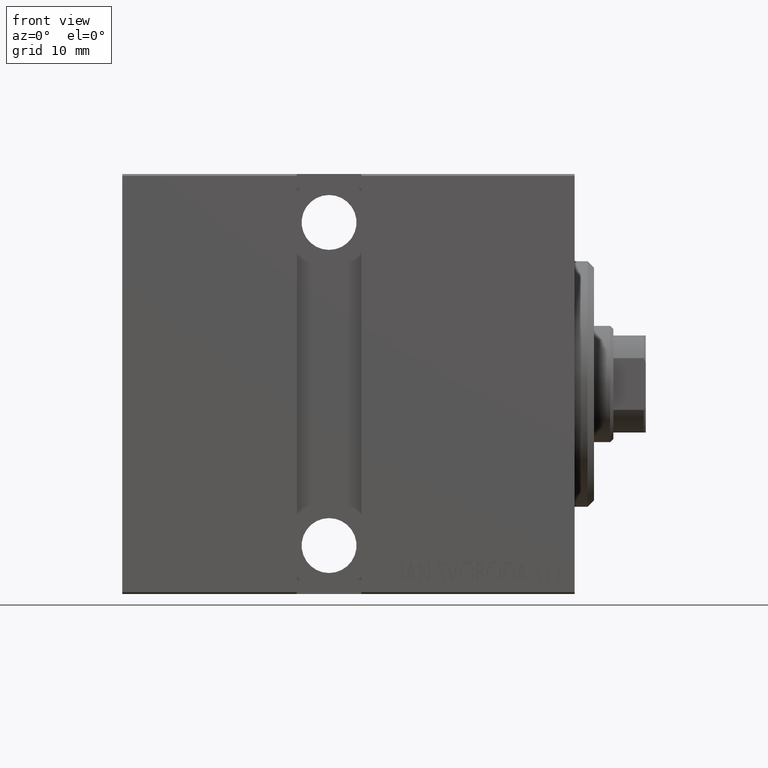
[diagram: clean part render]
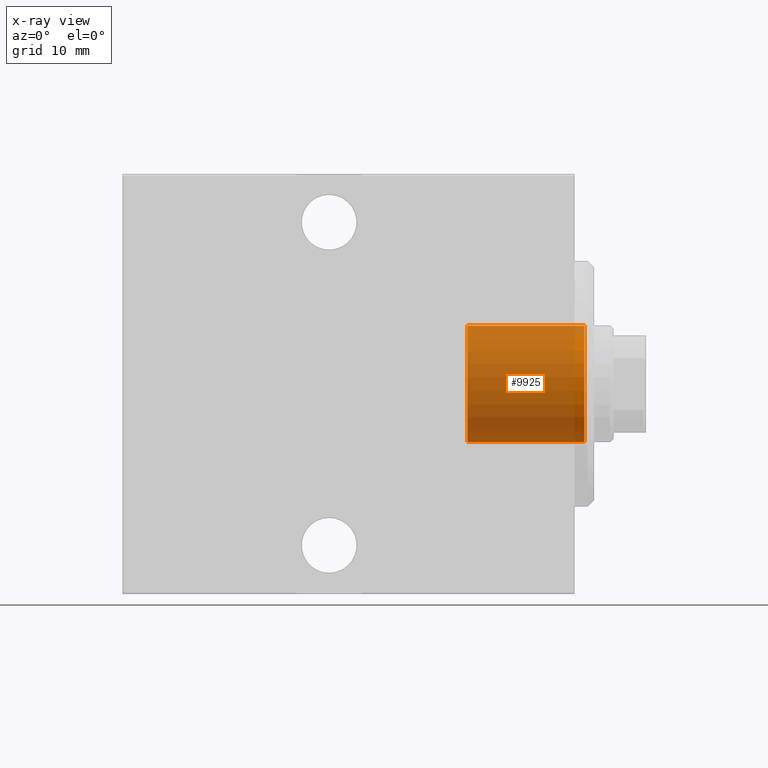
[diagram: x-ray — body ghosted, one internal face saturated and labeled with its STEP entity id]
A machine part, front view, then the same camera in x-ray: the body is ghosted and one INTERNAL B-rep face — a face not visible from any outside direction — is saturated and labeled: STEP entity #9925.
In plain terms, the highlighted cylindrical surface (partial cylindrical patch) has radius 9 mm, axis along (1, 0, 0).
Its self-contained STEP definition (entity closure, byte-faithful):
#211 = DIRECTION ( 'NONE',  ( 1.000000000000000000, -0.000000000000000000, -0.000000000000000000 ) ) ;
#3233 = VERTEX_POINT ( 'NONE', #7768 ) ;
#4513 = EDGE_CURVE ( 'NONE', #40953, #13582, #19763, .T. ) ;
#6076 = CARTESIAN_POINT ( 'NONE',  ( 1.500000000000001332, 0.000000000000000000, 0.000000000000000000 ) ) ;
#6739 = CYLINDRICAL_SURFACE ( 'NONE', #7609, 9.000000000000000000 ) ;
#6750 = EDGE_CURVE ( 'NONE', #40953, #31227, #23758, .T. ) ;
#7609 = AXIS2_PLACEMENT_3D ( 'NONE', #42966, #211, #13029 ) ;
#7768 = CARTESIAN_POINT ( 'NONE',  ( 1.500000000000001332, 0.000000000000000000, -9.000000000000000000 ) ) ;
#7965 = VECTOR ( 'NONE', #13669, 1000.000000000000000 ) ;
#8921 = LINE ( 'NONE', #42329, #22587 ) ;
#9925 = ADVANCED_FACE ( 'NONE', ( #12808 ), #6739, .F. ) ;
#10019 = CARTESIAN_POINT ( 'NONE',  ( -16.60000000000000142, 1.102182119232617517E-15, 9.000000000000000000 ) ) ;
#12488 = EDGE_LOOP ( 'NONE', ( #35271, #34179, #22015, #22151 ) ) ;
#12504 = DIRECTION ( 'NONE',  ( 1.000000000000000000, 0.000000000000000000, 0.000000000000000000 ) ) ;
#12808 = FACE_OUTER_BOUND ( 'NONE', #12488, .T. ) ;
#13029 = DIRECTION ( 'NONE',  ( 0.000000000000000000, 0.000000000000000000, -1.000000000000000000 ) ) ;
#13453 = CARTESIAN_POINT ( 'NONE',  ( -16.60000000000000142, 1.102182119232617517E-15, 9.000000000000000000 ) ) ;
#13582 = VERTEX_POINT ( 'NONE', #28153 ) ;
#13669 = DIRECTION ( 'NONE',  ( 1.000000000000000000, -0.000000000000000000, -0.000000000000000000 ) ) ;
#15327 = DIRECTION ( 'NONE',  ( 0.000000000000000000, 0.000000000000000000, -1.000000000000000000 ) ) ;
#15452 = AXIS2_PLACEMENT_3D ( 'NONE', #22060, #12504, #15327 ) ;
#15631 = DIRECTION ( 'NONE',  ( 0.000000000000000000, 0.000000000000000000, -1.000000000000000000 ) ) ;
#15907 = CIRCLE ( 'NONE', #38087, 9.000000000000000000 ) ;
#19314 = DIRECTION ( 'NONE',  ( 1.000000000000000000, 0.000000000000000000, 0.000000000000000000 ) ) ;
#19763 = LINE ( 'NONE', #13453, #7965 ) ;
#22015 = ORIENTED_EDGE ( 'NONE', *, *, #37646, .T. ) ;
#22060 = CARTESIAN_POINT ( 'NONE',  ( -16.60000000000000142, 0.000000000000000000, 0.000000000000000000 ) ) ;
#22151 = ORIENTED_EDGE ( 'NONE', *, *, #25370, .F. ) ;
#22587 = VECTOR ( 'NONE', #26056, 1000.000000000000000 ) ;
#23758 = CIRCLE ( 'NONE', #15452, 9.000000000000000000 ) ;
#25370 = EDGE_CURVE ( 'NONE', #31227, #3233, #8921, .T. ) ;
#26056 = DIRECTION ( 'NONE',  ( 1.000000000000000000, -0.000000000000000000, -0.000000000000000000 ) ) ;
#28153 = CARTESIAN_POINT ( 'NONE',  ( 1.500000000000001332, 1.102182119232617517E-15, 9.000000000000000000 ) ) ;
#31227 = VERTEX_POINT ( 'NONE', #39443 ) ;
#34179 = ORIENTED_EDGE ( 'NONE', *, *, #4513, .T. ) ;
#35271 = ORIENTED_EDGE ( 'NONE', *, *, #6750, .F. ) ;
#37646 = EDGE_CURVE ( 'NONE', #13582, #3233, #15907, .T. ) ;
#38087 = AXIS2_PLACEMENT_3D ( 'NONE', #6076, #19314, #15631 ) ;
#39443 = CARTESIAN_POINT ( 'NONE',  ( -16.60000000000000142, 0.000000000000000000, -9.000000000000000000 ) ) ;
#40953 = VERTEX_POINT ( 'NONE', #10019 ) ;
#42329 = CARTESIAN_POINT ( 'NONE',  ( -16.60000000000000142, 0.000000000000000000, -9.000000000000000000 ) ) ;
#42966 = CARTESIAN_POINT ( 'NONE',  ( -16.60000000000000142, 0.000000000000000000, 0.000000000000000000 ) ) ;